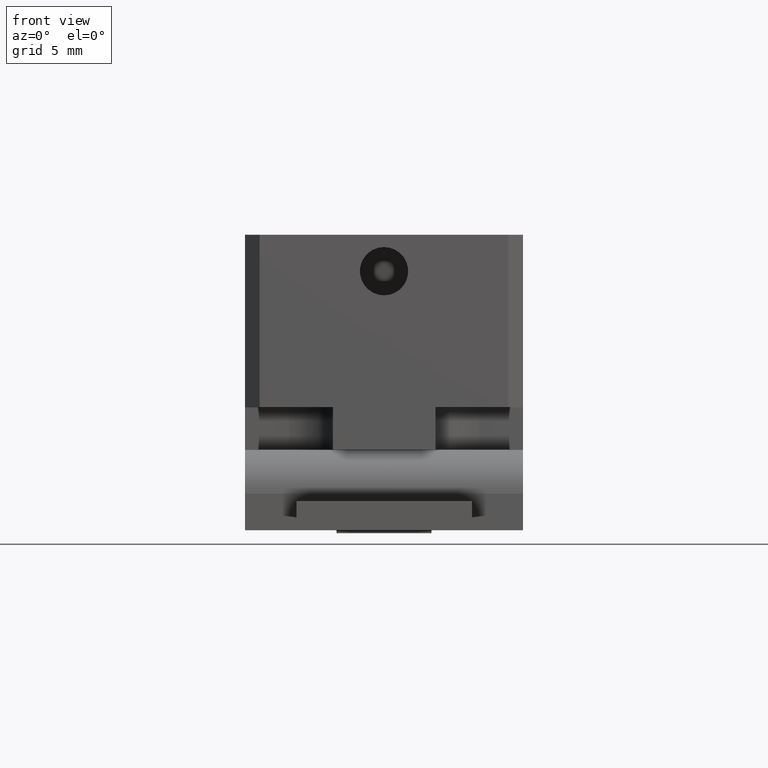
[diagram: clean part render]
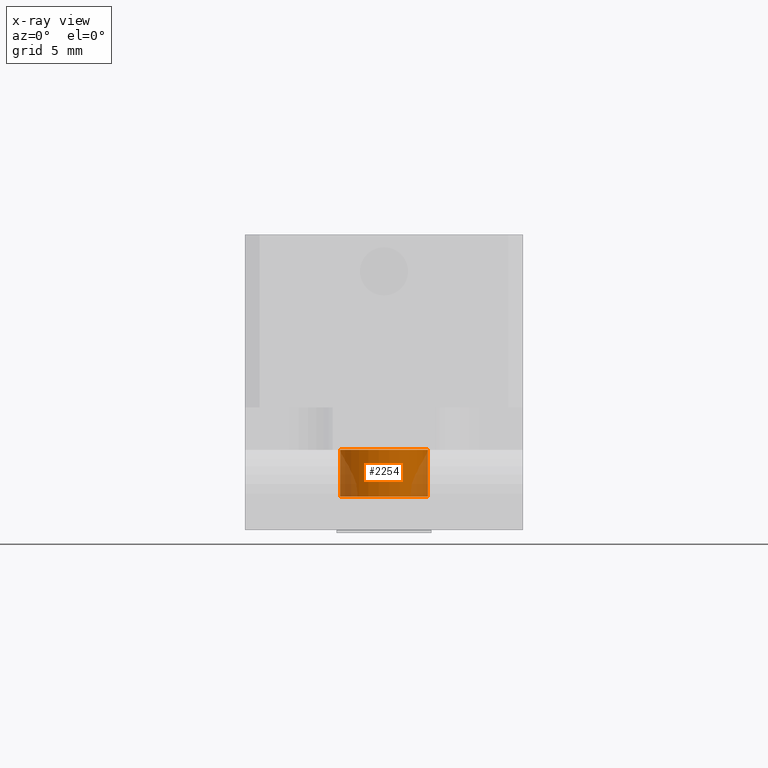
[diagram: x-ray — body ghosted, one internal face saturated and labeled with its STEP entity id]
A machine part, front view, then the same camera in x-ray: the body is ghosted and one INTERNAL B-rep face — a face not visible from any outside direction — is saturated and labeled: STEP entity #2254.
In plain terms, the highlighted cylindrical surface (partial cylindrical patch) has radius 3 mm, axis along (-0, -0, 1).
Its self-contained STEP definition (entity closure, byte-faithful):
#14 = VERTEX_POINT ( 'NONE', #2576 ) ;
#94 = DIRECTION ( 'NONE',  ( 1.000000000000000000, 0.0000000000000000000, 0.0000000000000000000 ) ) ;
#123 = CIRCLE ( 'NONE', #2625, 3.000000000000000400 ) ;
#455 = CARTESIAN_POINT ( 'NONE',  ( -4.906053409990408700, -5.546973295004570500, 22.70000000000000600 ) ) ;
#611 = CARTESIAN_POINT ( 'NONE',  ( -1.906053409990408300, -5.546973295004570500, 19.50000000000000700 ) ) ;
#776 = DIRECTION ( 'NONE',  ( 1.000000000000000000, 0.0000000000000000000, 0.0000000000000000000 ) ) ;
#991 = VERTEX_POINT ( 'NONE', #611 ) ;
#1004 = VERTEX_POINT ( 'NONE', #3613 ) ;
#1067 = ORIENTED_EDGE ( 'NONE', *, *, #2091, .T. ) ;
#1164 = CARTESIAN_POINT ( 'NONE',  ( -7.906053409990409600, -5.546973295004570500, 22.70000000000000600 ) ) ;
#1213 = LINE ( 'NONE', #1164, #1323 ) ;
#1323 = VECTOR ( 'NONE', #3483, 1000.000000000000000 ) ;
#1331 = EDGE_CURVE ( 'NONE', #991, #3390, #2484, .T. ) ;
#1418 = AXIS2_PLACEMENT_3D ( 'NONE', #4049, #2425, #94 ) ;
#1445 = DIRECTION ( 'NONE',  ( -0.0000000000000000000, -0.0000000000000000000, 1.000000000000000000 ) ) ;
#1602 = VECTOR ( 'NONE', #3536, 1000.000000000000000 ) ;
#1751 = ORIENTED_EDGE ( 'NONE', *, *, #2387, .T. ) ;
#2091 = EDGE_CURVE ( 'NONE', #14, #3390, #123, .T. ) ;
#2095 = EDGE_CURVE ( 'NONE', #1004, #991, #4220, .T. ) ;
#2254 = ADVANCED_FACE ( 'NONE', ( #3717 ), #3611, .F. ) ;
#2281 = EDGE_LOOP ( 'NONE', ( #2748, #1751, #1067, #3521 ) ) ;
#2294 = CARTESIAN_POINT ( 'NONE',  ( -1.906053409990407800, -5.546973295004570500, 22.70000000000000600 ) ) ;
#2387 = EDGE_CURVE ( 'NONE', #1004, #14, #1213, .T. ) ;
#2425 = DIRECTION ( 'NONE',  ( -0.0000000000000000000, -0.0000000000000000000, 1.000000000000000000 ) ) ;
#2484 = LINE ( 'NONE', #3197, #1602 ) ;
#2576 = CARTESIAN_POINT ( 'NONE',  ( -7.906053409990409600, -5.546973295004570500, 22.70000000000000600 ) ) ;
#2625 = AXIS2_PLACEMENT_3D ( 'NONE', #455, #2776, #776 ) ;
#2748 = ORIENTED_EDGE ( 'NONE', *, *, #2095, .F. ) ;
#2776 = DIRECTION ( 'NONE',  ( -0.0000000000000000000, -0.0000000000000000000, 1.000000000000000000 ) ) ;
#3066 = AXIS2_PLACEMENT_3D ( 'NONE', #3429, #1445, #3780 ) ;
#3197 = CARTESIAN_POINT ( 'NONE',  ( -1.906053409990408300, -5.546973295004570500, 22.70000000000000600 ) ) ;
#3390 = VERTEX_POINT ( 'NONE', #2294 ) ;
#3429 = CARTESIAN_POINT ( 'NONE',  ( -4.906053409990408700, -5.546973295004570500, 19.50000000000000700 ) ) ;
#3483 = DIRECTION ( 'NONE',  ( -0.0000000000000000000, -0.0000000000000000000, 1.000000000000000000 ) ) ;
#3521 = ORIENTED_EDGE ( 'NONE', *, *, #1331, .F. ) ;
#3536 = DIRECTION ( 'NONE',  ( -0.0000000000000000000, -0.0000000000000000000, 1.000000000000000000 ) ) ;
#3611 = CYLINDRICAL_SURFACE ( 'NONE', #1418, 3.000000000000000000 ) ;
#3613 = CARTESIAN_POINT ( 'NONE',  ( -7.906053409990409600, -5.546973295004570500, 19.50000000000000700 ) ) ;
#3717 = FACE_OUTER_BOUND ( 'NONE', #2281, .T. ) ;
#3780 = DIRECTION ( 'NONE',  ( 1.000000000000000000, 0.0000000000000000000, 0.0000000000000000000 ) ) ;
#4049 = CARTESIAN_POINT ( 'NONE',  ( -4.906053409990408700, -5.546973295004570500, 22.70000000000000600 ) ) ;
#4220 = CIRCLE ( 'NONE', #3066, 3.000000000000000000 ) ;